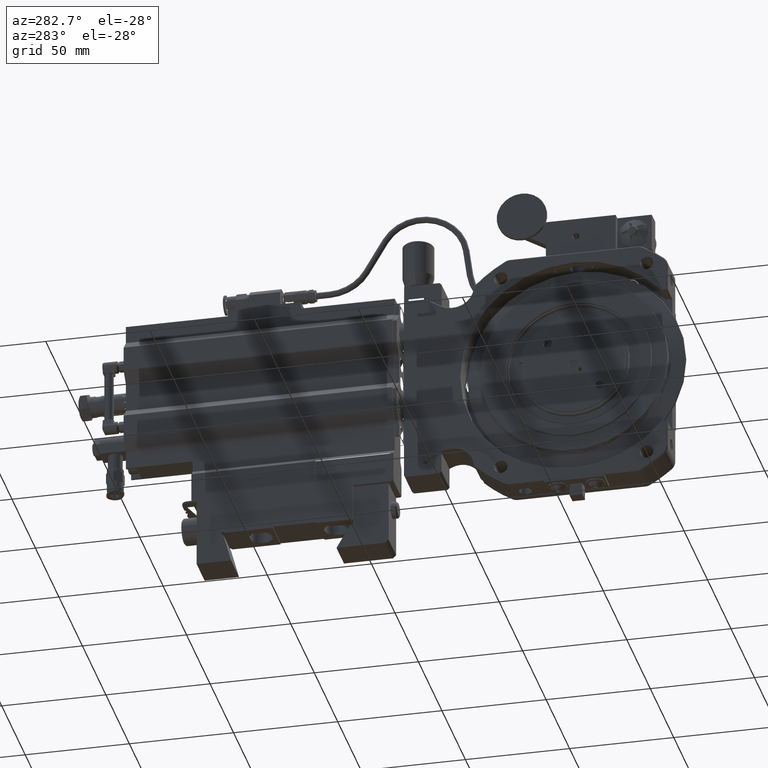
[diagram: clean part render]
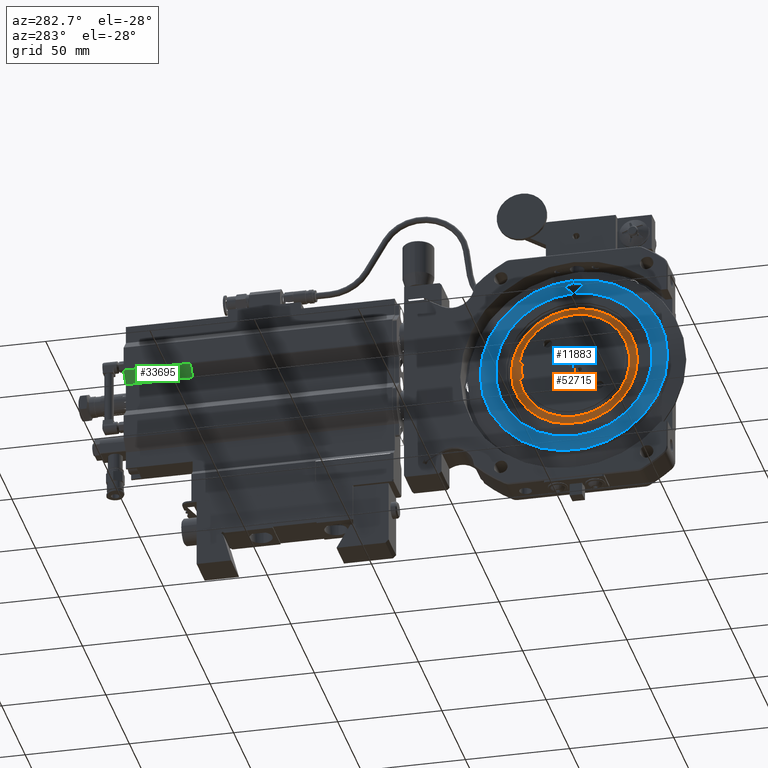
[diagram: same view with three faces highlighted in distinct colors, each labeled with its STEP entity id]
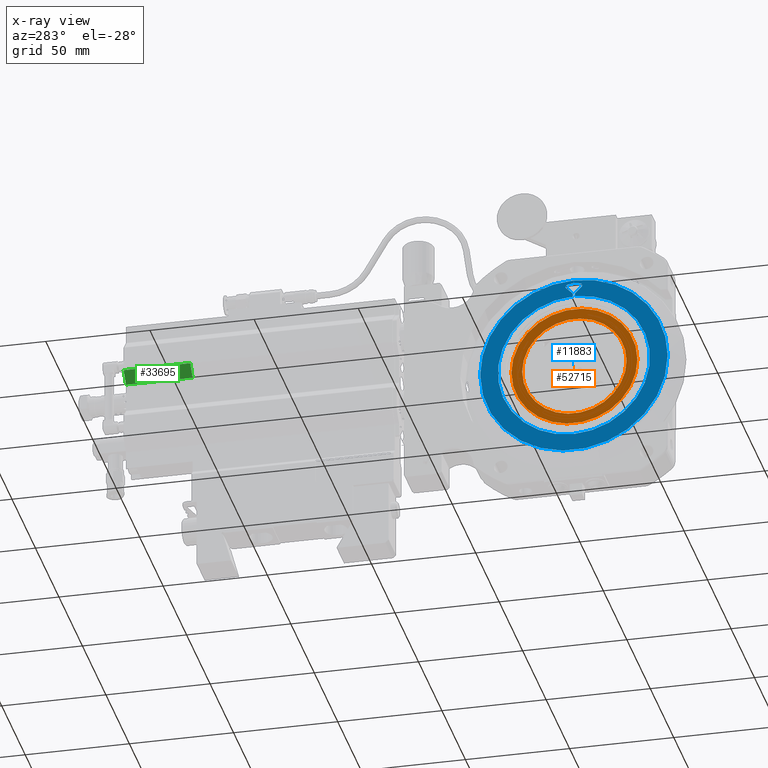
[diagram: x-ray of the same camera — body ghosted, the three highlighted faces saturated]
A machine part, auxiliary view with three faces highlighted in distinct colors.
The next image is the same camera in x-ray (body ghosted, the three faces saturated) — at least one of them is partly hidden behind the body in this view.
Their STEP definitions:

[orange] entity #52715 — the highlighted planar face has unit normal (1, 0, -0).
#1355 = FACE_OUTER_BOUND ( 'NONE', #2917, .T. ) ;
#2917 = EDGE_LOOP ( 'NONE', ( #44277, #25798 ) ) ;
#5049 = CIRCLE ( 'NONE', #48200, 0.9862204724409449064 ) ;
#6231 = CARTESIAN_POINT ( 'NONE',  ( -0.2834645669290990488, 1.230314960629957710, 2.644428857867728761E-16 ) ) ;
#8232 = DIRECTION ( 'NONE',  ( 1.000000000000000000, 2.775557561562891351E-17, -1.208413299729071092E-48 ) ) ;
#8746 = AXIS2_PLACEMENT_3D ( 'NONE', #25803, #59561, #29699 ) ;
#14716 = CARTESIAN_POINT ( 'NONE',  ( -0.2834645669290990488, 0.03937007874019379794, 7.215559199093263964E-29 ) ) ;
#16725 = EDGE_CURVE ( 'NONE', #39279, #27068, #5049, .T. ) ;
#16887 = EDGE_LOOP ( 'NONE', ( #19370, #55454 ) ) ;
#19370 = ORIENTED_EDGE ( 'NONE', *, *, #16725, .T. ) ;
#19903 = CIRCLE ( 'NONE', #25087, 1.190944881889763884 ) ;
#21726 = AXIS2_PLACEMENT_3D ( 'NONE', #26758, #41502, #61204 ) ;
#25087 = AXIS2_PLACEMENT_3D ( 'NONE', #52374, #8232, #51730 ) ;
#25798 = ORIENTED_EDGE ( 'NONE', *, *, #39394, .F. ) ;
#25803 = CARTESIAN_POINT ( 'NONE',  ( -0.2834645669290990488, 0.03937007874019379794, 7.215559199093263964E-29 ) ) ;
#25981 = AXIS2_PLACEMENT_3D ( 'NONE', #14716, #47850, #43011 ) ;
#26044 = CARTESIAN_POINT ( 'NONE',  ( -0.2834645669290990488, 1.025590551181138732, 2.189849351721995442E-16 ) ) ;
#26758 = CARTESIAN_POINT ( 'NONE',  ( -0.2834645669290990488, 0.03937007874019379794, 7.215559199093263964E-29 ) ) ;
#27068 = VERTEX_POINT ( 'NONE', #53596 ) ;
#28123 = DIRECTION ( 'NONE',  ( -3.462521908137339789E-17, 1.000000000000000000, 2.220446049250313574E-16 ) ) ;
#29699 = DIRECTION ( 'NONE',  ( -2.775557561562891351E-17, 1.000000000000000000, 2.220446049250313574E-16 ) ) ;
#32864 = VERTEX_POINT ( 'NONE', #34511 ) ;
#33888 = CARTESIAN_POINT ( 'NONE',  ( -0.2834645669290990488, 0.03937007874019379794, 7.215559199093263964E-29 ) ) ;
#34118 = VERTEX_POINT ( 'NONE', #6231 ) ;
#34511 = CARTESIAN_POINT ( 'NONE',  ( -0.2834645669290989933, -1.151574803149569837, -1.185942020299064003E-16 ) ) ;
#35076 = CIRCLE ( 'NONE', #21726, 0.9862204724409449064 ) ;
#39279 = VERTEX_POINT ( 'NONE', #26044 ) ;
#39394 = EDGE_CURVE ( 'NONE', #32864, #34118, #59867, .T. ) ;
#41502 = DIRECTION ( 'NONE',  ( 1.000000000000000000, 2.775557561562891351E-17, -1.208413299729071092E-48 ) ) ;
#43011 = DIRECTION ( 'NONE',  ( -2.867311530540176710E-17, 1.000000000000000000, 2.220446049250313574E-16 ) ) ;
#44277 = ORIENTED_EDGE ( 'NONE', *, *, #60644, .F. ) ;
#47712 = DIRECTION ( 'NONE',  ( 1.000000000000000000, 2.775557561562891351E-17, -1.208413299729071092E-48 ) ) ;
#47850 = DIRECTION ( 'NONE',  ( 1.000000000000000000, 2.775557561562891351E-17, -1.208413299729071092E-48 ) ) ;
#48200 = AXIS2_PLACEMENT_3D ( 'NONE', #33888, #47712, #28123 ) ;
#50230 = PLANE ( 'NONE',  #8746 ) ;
#51730 = DIRECTION ( 'NONE',  ( -2.867311530540176710E-17, 1.000000000000000000, 2.220446049250313574E-16 ) ) ;
#52374 = CARTESIAN_POINT ( 'NONE',  ( -0.2834645669290990488, 0.03937007874019379794, 7.215559199093263964E-29 ) ) ;
#52715 = ADVANCED_FACE ( 'NONE', ( #55053, #1355 ), #50230, .F. ) ;
#53596 = CARTESIAN_POINT ( 'NONE',  ( -0.2834645669290989933, -0.9468503937007510807, -9.820776068921588463E-17 ) ) ;
#55053 = FACE_BOUND ( 'NONE', #16887, .T. ) ;
#55454 = ORIENTED_EDGE ( 'NONE', *, *, #57525, .T. ) ;
#57525 = EDGE_CURVE ( 'NONE', #27068, #39279, #35076, .T. ) ;
#59561 = DIRECTION ( 'NONE',  ( 1.000000000000000000, 2.775557561562891351E-17, -1.368455531567204171E-48 ) ) ;
#59867 = CIRCLE ( 'NONE', #25981, 1.190944881889763884 ) ;
#60644 = EDGE_CURVE ( 'NONE', #34118, #32864, #19903, .T. ) ;
#61204 = DIRECTION ( 'NONE',  ( -3.462521908137339789E-17, 1.000000000000000000, 2.220446049250313574E-16 ) ) ;

[blue] entity #11883 — the highlighted planar face has unit normal (-1, -0, 0).
#972 = AXIS2_PLACEMENT_3D ( 'NONE', #47460, #7223, #61343 ) ;
#1423 = ORIENTED_EDGE ( 'NONE', *, *, #34148, .F. ) ;
#1493 = CARTESIAN_POINT ( 'NONE',  ( -0.3228346456692563482, 0.04133858267720174479, 1.771652449693450926 ) ) ;
#2939 = CARTESIAN_POINT ( 'NONE',  ( -0.3228346456692563482, 0.03937007874019379794, 7.215559199093263964E-29 ) ) ;
#3939 = VECTOR ( 'NONE', #27124, 39.37007874015748143 ) ;
#3977 = DIRECTION ( 'NONE',  ( 0.000000000000000000, -1.000000000000000000, 0.000000000000000000 ) ) ;
#4467 = FACE_OUTER_BOUND ( 'NONE', #60060, .T. ) ;
#4485 = CARTESIAN_POINT ( 'NONE',  ( -0.3228346456692563482, -0.1182532177313372346, 1.651769766690424524 ) ) ;
#4663 = VECTOR ( 'NONE', #48402, 39.37007874015748143 ) ;
#4673 = LINE ( 'NONE', #38735, #4663 ) ;
#5355 = LINE ( 'NONE', #6581, #25261 ) ;
#6446 = DIRECTION ( 'NONE',  ( 1.962615573354603094E-17, -0.7071067811865058284, -0.7071067811865893171 ) ) ;
#6552 = CARTESIAN_POINT ( 'NONE',  ( -0.3228346456692563482, 0.03937007874019379794, 7.215559199093263964E-29 ) ) ;
#6581 = CARTESIAN_POINT ( 'NONE',  ( -0.3228346456692563482, 0.03937007874019387427, 1.712598425196850238 ) ) ;
#7097 = CIRCLE ( 'NONE', #9173, 0.03937007874015729242 ) ;
#7223 = DIRECTION ( 'NONE',  ( -1.000000000000000000, -2.775557561562891351E-17, 0.000000000000000000 ) ) ;
#7573 = ORIENTED_EDGE ( 'NONE', *, *, #51880, .F. ) ;
#7610 = EDGE_CURVE ( 'NONE', #32264, #30902, #23490, .T. ) ;
#7863 = VERTEX_POINT ( 'NONE', #39643 ) ;
#9173 = AXIS2_PLACEMENT_3D ( 'NONE', #18513, #17881, #47802 ) ;
#10029 = DIRECTION ( 'NONE',  ( -1.000000000000000000, -2.775557561562891351E-17, 0.000000000000000000 ) ) ;
#10551 = ORIENTED_EDGE ( 'NONE', *, *, #38958, .F. ) ;
#10675 = EDGE_CURVE ( 'NONE', #21170, #51746, #4673, .T. ) ;
#10989 = CARTESIAN_POINT ( 'NONE',  ( -0.3228346456692563482, 0.06482073265384374894, 1.503289503566663354 ) ) ;
#11883 = ADVANCED_FACE ( 'NONE', ( #4467 ), #62394, .T. ) ;
#13328 = CIRCLE ( 'NONE', #57514, 0.01968503937007870866 ) ;
#13364 = CIRCLE ( 'NONE', #49329, 0.01968503937007869131 ) ;
#13678 = EDGE_CURVE ( 'NONE', #51746, #60258, #36475, .T. ) ;
#14158 = ORIENTED_EDGE ( 'NONE', *, *, #13678, .F. ) ;
#14521 = DIRECTION ( 'NONE',  ( 4.505740334774710468E-33, -1.623364039417567997E-16, -1.000000000000000000 ) ) ;
#14956 = AXIS2_PLACEMENT_3D ( 'NONE', #35022, #49779, #25365 ) ;
#15192 = EDGE_CURVE ( 'NONE', #59343, #37817, #44210, .T. ) ;
#16460 = AXIS2_PLACEMENT_3D ( 'NONE', #6552, #31688, #40641 ) ;
#16708 = VECTOR ( 'NONE', #57508, 39.37007874015748143 ) ;
#17881 = DIRECTION ( 'NONE',  ( -1.000000000000000000, -2.775557561562891351E-17, 0.000000000000000000 ) ) ;
#18132 = DIRECTION ( 'NONE',  ( 0.000000000000000000, -1.000000000000000000, 0.000000000000000000 ) ) ;
#18513 = CARTESIAN_POINT ( 'NONE',  ( -0.3228346456692563482, -0.07888313899117993522, 1.651769766690424524 ) ) ;
#19066 = VERTEX_POINT ( 'NONE', #4485 ) ;
#19255 = DIRECTION ( 'NONE',  ( 1.962615573354717418E-17, -0.7071067811865470176, 0.7071067811865479058 ) ) ;
#19336 = CARTESIAN_POINT ( 'NONE',  ( -0.3228346456692563482, 0.05905511811027260721, 1.489370078740157366 ) ) ;
#19708 = ORIENTED_EDGE ( 'NONE', *, *, #22676, .F. ) ;
#19953 = CARTESIAN_POINT ( 'NONE',  ( -0.3228346456692563482, 0.05905511811027260721, 1.489370078740157366 ) ) ;
#20777 = ORIENTED_EDGE ( 'NONE', *, *, #47323, .F. ) ;
#21170 = VERTEX_POINT ( 'NONE', #1493 ) ;
#21602 = EDGE_CURVE ( 'NONE', #32532, #32264, #13364, .T. ) ;
#21740 = CARTESIAN_POINT ( 'NONE',  ( -0.3228346456692563482, 0.03740157480318600375, 1.712251324841125077 ) ) ;
#21875 = CARTESIAN_POINT ( 'NONE',  ( -0.3228346456692563482, -0.08571968141901083194, 1.690541725470432910 ) ) ;
#21988 = CARTESIAN_POINT ( 'NONE',  ( -0.3228346456692563482, 0.04133858267720173091, 1.712251324841125077 ) ) ;
#22209 = CARTESIAN_POINT ( 'NONE',  ( -0.3228346456692564037, 1.811023622047280623, -1.764211269866727614E-16 ) ) ;
#22581 = DIRECTION ( 'NONE',  ( -1.000000000000000000, -2.775557561562891351E-17, 0.000000000000000000 ) ) ;
#22676 = EDGE_CURVE ( 'NONE', #7863, #55540, #30013, .T. ) ;
#23490 = LINE ( 'NONE', #30453, #35236 ) ;
#23632 = EDGE_CURVE ( 'NONE', #37817, #30458, #31990, .T. ) ;
#25233 = ORIENTED_EDGE ( 'NONE', *, *, #55466, .F. ) ;
#25261 = VECTOR ( 'NONE', #26265, 39.37007874015748854 ) ;
#25365 = DIRECTION ( 'NONE',  ( 2.775557561562891351E-17, -1.000000000000000000, 9.957992501029599969E-17 ) ) ;
#25776 = CARTESIAN_POINT ( 'NONE',  ( -0.3228346456692563482, 0.1644598388993948057, 1.690541725470431800 ) ) ;
#26265 = DIRECTION ( 'NONE',  ( -2.733390605558798885E-17, 0.9848077530122096857, 0.1736481776669207000 ) ) ;
#27124 = DIRECTION ( 'NONE',  ( -1.223154182912137040E-33, 4.406877377903811104E-17, 1.000000000000000000 ) ) ;
#28424 = DIRECTION ( 'NONE',  ( 1.000000000000000000, 2.775557561562891351E-17, 0.000000000000000000 ) ) ;
#30013 = LINE ( 'NONE', #10989, #49891 ) ;
#30453 = CARTESIAN_POINT ( 'NONE',  ( -0.3228346456692563482, 0.01391942482654314785, 1.503289503566674457 ) ) ;
#30458 = VERTEX_POINT ( 'NONE', #39720 ) ;
#30775 = ORIENTED_EDGE ( 'NONE', *, *, #7610, .F. ) ;
#30902 = VERTEX_POINT ( 'NONE', #36774 ) ;
#31068 = VECTOR ( 'NONE', #41578, 39.37007874015748143 ) ;
#31688 = DIRECTION ( 'NONE',  ( -1.000000000000000000, -2.775557561562891351E-17, 0.000000000000000000 ) ) ;
#31950 = LINE ( 'NONE', #51563, #3939 ) ;
#31990 = CIRCLE ( 'NONE', #53562, 1.771653543307086798 ) ;
#32040 = CARTESIAN_POINT ( 'NONE',  ( -0.3228346456692563482, 0.01968503937011507887, 1.489370078740167802 ) ) ;
#32264 = VERTEX_POINT ( 'NONE', #57181 ) ;
#32429 = DIRECTION ( 'NONE',  ( -1.000000000000000000, -2.775557561562891351E-17, 0.000000000000000000 ) ) ;
#32532 = VERTEX_POINT ( 'NONE', #32040 ) ;
#33743 = DIRECTION ( 'NONE',  ( -1.000000000000000000, -2.775557561562891351E-17, 0.000000000000000000 ) ) ;
#33893 = EDGE_CURVE ( 'NONE', #19066, #38284, #7097, .T. ) ;
#34148 = EDGE_CURVE ( 'NONE', #55540, #38215, #13328, .T. ) ;
#35022 = CARTESIAN_POINT ( 'NONE',  ( -0.3228346456692563482, 0.03937007874019379794, 7.215559199093263964E-29 ) ) ;
#35236 = VECTOR ( 'NONE', #19255, 39.37007874015748854 ) ;
#36446 = AXIS2_PLACEMENT_3D ( 'NONE', #36598, #32429, #62036 ) ;
#36475 = LINE ( 'NONE', #50311, #31068 ) ;
#36504 = DIRECTION ( 'NONE',  ( 1.000000000000000000, 2.775557561562891351E-17, 0.000000000000000000 ) ) ;
#36598 = CARTESIAN_POINT ( 'NONE',  ( -0.3228346456692563482, 0.03937007874019379794, 7.215559199093263964E-29 ) ) ;
#36694 = CARTESIAN_POINT ( 'NONE',  ( -0.3228346456692563482, 0.01968503937011512051, 1.436873038653122769 ) ) ;
#36774 = CARTESIAN_POINT ( 'NONE',  ( -0.3228346456692563482, -0.1067219886441982957, 1.623930917037415878 ) ) ;
#37179 = CIRCLE ( 'NONE', #45353, 0.03937007874015729242 ) ;
#37817 = VERTEX_POINT ( 'NONE', #46097 ) ;
#37884 = CARTESIAN_POINT ( 'NONE',  ( -0.3228346456692563482, 0.01968503937011512744, 1.489370078740167802 ) ) ;
#38215 = VERTEX_POINT ( 'NONE', #19953 ) ;
#38284 = VERTEX_POINT ( 'NONE', #21875 ) ;
#38735 = CARTESIAN_POINT ( 'NONE',  ( -0.3228346456692563482, 0.04133858267720174479, 1.692913385826771533 ) ) ;
#38958 = EDGE_CURVE ( 'NONE', #30902, #19066, #37179, .T. ) ;
#39427 = EDGE_CURVE ( 'NONE', #63450, #32532, #58795, .T. ) ;
#39643 = CARTESIAN_POINT ( 'NONE',  ( -0.3228346456692563482, 0.1854621461245780090, 1.623930917037411881 ) ) ;
#39720 = CARTESIAN_POINT ( 'NONE',  ( -0.3228346456692563482, 0.03740157480318600375, 1.771652449693450926 ) ) ;
#39910 = ORIENTED_EDGE ( 'NONE', *, *, #10675, .F. ) ;
#40641 = DIRECTION ( 'NONE',  ( 3.854941057726237851E-17, -1.000000000000000000, 9.957992501029601202E-17 ) ) ;
#41578 = DIRECTION ( 'NONE',  ( -2.733390605558792414E-17, 0.9848077530122073542, -0.1736481776669343002 ) ) ;
#41677 = CIRCLE ( 'NONE', #59168, 1.437007874015747921 ) ;
#42185 = LINE ( 'NONE', #19336, #60162 ) ;
#42550 = CARTESIAN_POINT ( 'NONE',  ( -0.3228346456692563482, 0.07874015748035136097, 1.489370078740157366 ) ) ;
#43478 = CARTESIAN_POINT ( 'NONE',  ( -0.3228346456692563482, -0.07888313899117993522, 1.651769766690424524 ) ) ;
#44210 = CIRCLE ( 'NONE', #16460, 1.771653543307086798 ) ;
#45353 = AXIS2_PLACEMENT_3D ( 'NONE', #43478, #10029, #3977 ) ;
#46097 = CARTESIAN_POINT ( 'NONE',  ( -0.3228346456692562927, -1.732283464566892972, 3.933861110877261138E-16 ) ) ;
#46713 = CARTESIAN_POINT ( 'NONE',  ( -0.3228346456692563482, 3.639333749059610777E-14, 1.489370078740167802 ) ) ;
#47323 = EDGE_CURVE ( 'NONE', #60258, #7863, #56440, .T. ) ;
#47460 = CARTESIAN_POINT ( 'NONE',  ( -0.3228346456692563482, 0.1576232964715627294, 1.651769766690423857 ) ) ;
#47802 = DIRECTION ( 'NONE',  ( 0.000000000000000000, -1.000000000000000000, 0.000000000000000000 ) ) ;
#47908 = CARTESIAN_POINT ( 'NONE',  ( -0.3228346456692563482, 0.06482073265384370730, 1.503289503566663354 ) ) ;
#47995 = DIRECTION ( 'NONE',  ( 0.000000000000000000, -1.000000000000000000, 0.000000000000000000 ) ) ;
#48402 = DIRECTION ( 'NONE',  ( 1.223154182912137040E-33, -4.406877377903811104E-17, -1.000000000000000000 ) ) ;
#49329 = AXIS2_PLACEMENT_3D ( 'NONE', #46713, #28424, #47995 ) ;
#49779 = DIRECTION ( 'NONE',  ( -1.000000000000000000, -2.775557561562891351E-17, 0.000000000000000000 ) ) ;
#49812 = CIRCLE ( 'NONE', #36446, 1.771653543307086798 ) ;
#49891 = VECTOR ( 'NONE', #6446, 39.37007874015748143 ) ;
#50311 = CARTESIAN_POINT ( 'NONE',  ( -0.3228346456692563482, 0.03937007874019387427, 1.712598425196850238 ) ) ;
#51070 = EDGE_CURVE ( 'NONE', #21170, #59343, #49812, .T. ) ;
#51563 = CARTESIAN_POINT ( 'NONE',  ( -0.3228346456692563482, 0.03740157480318599681, 1.692913385826771533 ) ) ;
#51581 = VERTEX_POINT ( 'NONE', #57738 ) ;
#51746 = VERTEX_POINT ( 'NONE', #21988 ) ;
#51880 = EDGE_CURVE ( 'NONE', #38215, #51581, #42185, .T. ) ;
#52882 = ORIENTED_EDGE ( 'NONE', *, *, #21602, .F. ) ;
#53182 = ORIENTED_EDGE ( 'NONE', *, *, #33893, .F. ) ;
#53310 = EDGE_CURVE ( 'NONE', #51581, #63450, #41677, .T. ) ;
#53562 = AXIS2_PLACEMENT_3D ( 'NONE', #2939, #22581, #56988 ) ;
#54219 = ORIENTED_EDGE ( 'NONE', *, *, #53310, .F. ) ;
#55458 = ORIENTED_EDGE ( 'NONE', *, *, #62644, .F. ) ;
#55466 = EDGE_CURVE ( 'NONE', #60886, #30458, #31950, .T. ) ;
#55540 = VERTEX_POINT ( 'NONE', #47908 ) ;
#56440 = CIRCLE ( 'NONE', #972, 0.03937007874015741732 ) ;
#56988 = DIRECTION ( 'NONE',  ( 3.854941057726237851E-17, -1.000000000000000000, 9.957992501029601202E-17 ) ) ;
#57181 = CARTESIAN_POINT ( 'NONE',  ( -0.3228346456692563482, 0.01391942482654314785, 1.503289503566674457 ) ) ;
#57508 = DIRECTION ( 'NONE',  ( -2.864447258843187695E-33, 1.032025888603889505E-16, 1.000000000000000000 ) ) ;
#57514 = AXIS2_PLACEMENT_3D ( 'NONE', #42550, #36504, #18132 ) ;
#57524 = DIRECTION ( 'NONE',  ( 4.752667057470704875E-17, -1.000000000000000000, 9.957992501029599969E-17 ) ) ;
#57738 = CARTESIAN_POINT ( 'NONE',  ( -0.3228346456692563482, 0.05905511811027260721, 1.436873038653122769 ) ) ;
#57876 = CARTESIAN_POINT ( 'NONE',  ( -0.3228346456692563482, 0.03937007874019379794, 7.215559199093263964E-29 ) ) ;
#58141 = ORIENTED_EDGE ( 'NONE', *, *, #23632, .T. ) ;
#58795 = LINE ( 'NONE', #37884, #16708 ) ;
#59026 = ORIENTED_EDGE ( 'NONE', *, *, #39427, .F. ) ;
#59138 = ORIENTED_EDGE ( 'NONE', *, *, #51070, .T. ) ;
#59168 = AXIS2_PLACEMENT_3D ( 'NONE', #57876, #33743, #57524 ) ;
#59181 = ORIENTED_EDGE ( 'NONE', *, *, #15192, .T. ) ;
#59343 = VERTEX_POINT ( 'NONE', #22209 ) ;
#60060 = EDGE_LOOP ( 'NONE', ( #25233, #55458, #53182, #10551, #30775, #52882, #59026, #54219, #7573, #1423, #19708, #20777, #14158, #39910, #59138, #59181, #58141 ) ) ;
#60162 = VECTOR ( 'NONE', #14521, 39.37007874015748143 ) ;
#60258 = VERTEX_POINT ( 'NONE', #25776 ) ;
#60886 = VERTEX_POINT ( 'NONE', #21740 ) ;
#61343 = DIRECTION ( 'NONE',  ( 0.000000000000000000, 1.000000000000000000, 0.000000000000000000 ) ) ;
#62036 = DIRECTION ( 'NONE',  ( 3.854941057726237851E-17, -1.000000000000000000, 9.957992501029601202E-17 ) ) ;
#62394 = PLANE ( 'NONE',  #14956 ) ;
#62644 = EDGE_CURVE ( 'NONE', #38284, #60886, #5355, .T. ) ;
#63450 = VERTEX_POINT ( 'NONE', #36694 ) ;

[green] entity #33695 — the highlighted planar face has unit normal (0.7071, -0, 0.7071).
#173 = VERTEX_POINT ( 'NONE', #54342 ) ;
#1419 = EDGE_CURVE ( 'NONE', #49966, #38243, #60750, .T. ) ;
#7344 = EDGE_CURVE ( 'NONE', #54362, #173, #45345, .T. ) ;
#7430 = LINE ( 'NONE', #22279, #50524 ) ;
#7661 = CARTESIAN_POINT ( 'NONE',  ( -0.2362204724409463219, 8.523622047244082012, 0.6318642254751390963 ) ) ;
#10670 = FACE_OUTER_BOUND ( 'NONE', #54471, .T. ) ;
#10957 = DIRECTION ( 'NONE',  ( -2.738967610578713573E-17, 1.000000000000000000, -2.775557561562891351E-17 ) ) ;
#10980 = CARTESIAN_POINT ( 'NONE',  ( -0.2362204724409462941, 7.263779527559043103, 0.6318642254751390963 ) ) ;
#15388 = EDGE_CURVE ( 'NONE', #54362, #49966, #7430, .T. ) ;
#16385 = CARTESIAN_POINT ( 'NONE',  ( -0.4330708661417335126, 7.263779527559043103, 0.8287146191759264813 ) ) ;
#18779 = DIRECTION ( 'NONE',  ( -2.738967610578713573E-17, 1.000000000000000000, -2.775557561562891351E-17 ) ) ;
#19392 = ORIENTED_EDGE ( 'NONE', *, *, #7344, .T. ) ;
#21277 = DIRECTION ( 'NONE',  ( 0.7071067811865479058, -7.798716288489736860E-17, 0.7071067811865471286 ) ) ;
#21711 = EDGE_CURVE ( 'NONE', #173, #38243, #49600, .T. ) ;
#22069 = ORIENTED_EDGE ( 'NONE', *, *, #21711, .T. ) ;
#22279 = CARTESIAN_POINT ( 'NONE',  ( -0.2362204724409462941, 7.263779527559043103, 0.6318642254751390963 ) ) ;
#24539 = DIRECTION ( 'NONE',  ( 0.7071067811865470176, 5.174600492914327837E-19, -0.7071067811865479058 ) ) ;
#27637 = ORIENTED_EDGE ( 'NONE', *, *, #15388, .F. ) ;
#29389 = CARTESIAN_POINT ( 'NONE',  ( -0.2362204724409463219, 8.523622047244082012, 0.6318642254751390963 ) ) ;
#31850 = VECTOR ( 'NONE', #18779, 39.37007874015748143 ) ;
#33695 = ADVANCED_FACE ( 'NONE', ( #10670 ), #35455, .F. ) ;
#33890 = AXIS2_PLACEMENT_3D ( 'NONE', #10980, #21277, #55999 ) ;
#33977 = VECTOR ( 'NONE', #24539, 39.37007874015748854 ) ;
#35455 = PLANE ( 'NONE',  #33890 ) ;
#38243 = VERTEX_POINT ( 'NONE', #7661 ) ;
#45345 = LINE ( 'NONE', #16385, #48459 ) ;
#48459 = VECTOR ( 'NONE', #10957, 39.37007874015748143 ) ;
#49600 = LINE ( 'NONE', #29389, #33977 ) ;
#49966 = VERTEX_POINT ( 'NONE', #54898 ) ;
#50524 = VECTOR ( 'NONE', #60255, 39.37007874015748854 ) ;
#54342 = CARTESIAN_POINT ( 'NONE',  ( -0.4330708661417335681, 8.523622047244082012, 0.8287146191759264813 ) ) ;
#54362 = VERTEX_POINT ( 'NONE', #55182 ) ;
#54471 = EDGE_LOOP ( 'NONE', ( #22069, #59592, #27637, #19392 ) ) ;
#54898 = CARTESIAN_POINT ( 'NONE',  ( -0.2362204724409464052, 7.263779527559043103, 0.6318642254751390963 ) ) ;
#55182 = CARTESIAN_POINT ( 'NONE',  ( -0.4330708661417335126, 7.263779527559043103, 0.8287146191759264813 ) ) ;
#55999 = DIRECTION ( 'NONE',  ( 0.7071067811865471286, 5.174600492914266207E-19, -0.7071067811865479058 ) ) ;
#58050 = CARTESIAN_POINT ( 'NONE',  ( -0.2362204724409462941, 7.263779527559043103, 0.6318642254751390963 ) ) ;
#59592 = ORIENTED_EDGE ( 'NONE', *, *, #1419, .F. ) ;
#60255 = DIRECTION ( 'NONE',  ( 0.7071067811865470176, 5.174600492914327837E-19, -0.7071067811865479058 ) ) ;
#60750 = LINE ( 'NONE', #58050, #31850 ) ;